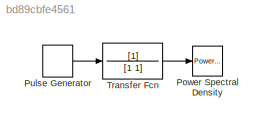
MODEL slx_bd89cbfe4561
KIND model
CONFIG AbsTol = auto
CONFIG EnableMultiTasking = off
CONFIG FixedStep = auto
CONFIG MaxStep = auto
CONFIG MinStep = auto
CONFIG RelTol = 1e-3
CONFIG SampleTimeConstraint = Unconstrained
CONFIG SolverName = VariableStepAuto
CONFIG StartTime = 0.0
CONFIG StopTime = 10.0
BLOCK [Reference] Power Spectral Density  REF=simulink_extras/Additional
Sinks/Power Spectral
Density
  SourceBlock = simulink_extras/Additional\nSinks/Power Spectral\nDensity
  SourceType = Power Spectral Density
BLOCK [DiscretePulseGenerator] Pulse Generator
  Period = 1.5
  PulseType = Time based
  PulseWidth = 10
BLOCK [TransferFcn] Transfer Fcn
  Denominator = [1 1]
LINE Pulse Generator:1 -> Transfer Fcn:1
LINE Transfer Fcn:1 -> Power Spectral Density:1
